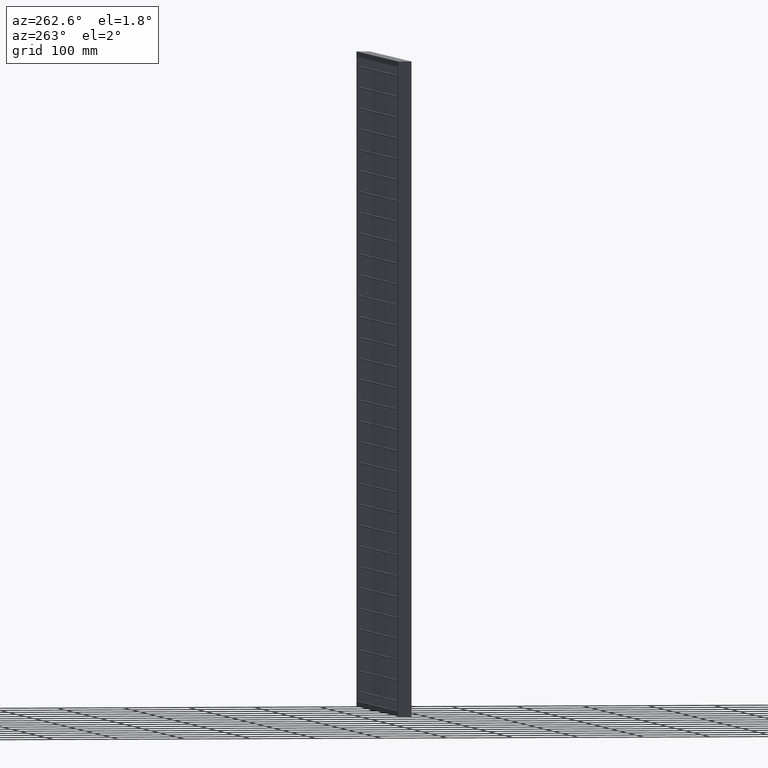
[diagram: clean part render]
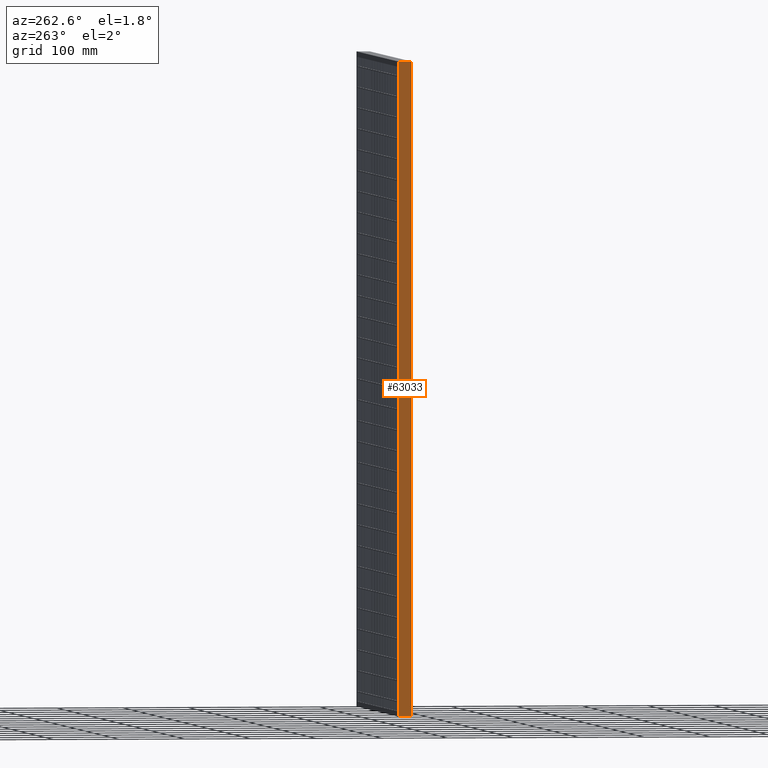
[diagram: same view with one face highlighted and labeled with its STEP entity id]
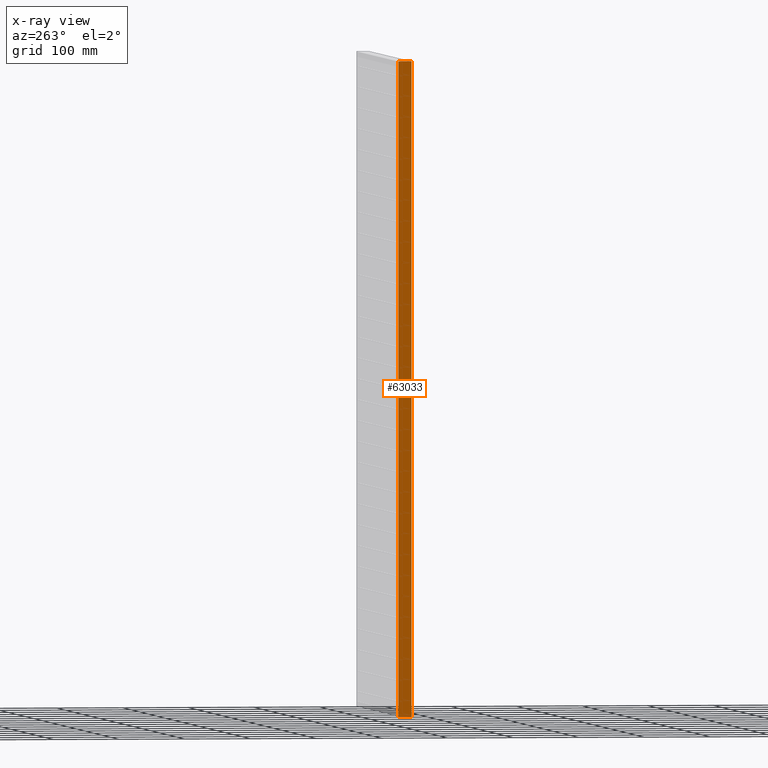
[diagram: x-ray of the same camera — body ghosted, the highlighted face saturated]
A machine part, auxiliary view. The second image highlights one B-rep face of the part: STEP entity #63033.
The next image is the same camera in x-ray: the body ghosted, the highlighted face saturated — about 0% of this face is hidden behind the body in this view.
In plain terms, the highlighted planar face has unit normal (-1, -0, 0).
Its self-contained STEP definition (entity closure, byte-faithful):
#1864 = LINE ( 'NONE', #12624, #5274 ) ;
#2386 = LINE ( 'NONE', #12839, #65158 ) ;
#3214 = VERTEX_POINT ( 'NONE', #67420 ) ;
#5045 = VERTEX_POINT ( 'NONE', #38689 ) ;
#5274 = VECTOR ( 'NONE', #55854, 1000.000000000000000 ) ;
#6927 = ORIENTED_EDGE ( 'NONE', *, *, #30135, .T. ) ;
#9090 = EDGE_CURVE ( 'NONE', #61367, #3214, #1864, .T. ) ;
#11494 = CARTESIAN_POINT ( 'NONE',  ( -3.061616997868382300E-015, 10.00000000000000000, -1033.081318457076100 ) ) ;
#12624 = CARTESIAN_POINT ( 'NONE',  ( 3.061616997868383000E-015, -10.00000000000000000, -1033.081318457076100 ) ) ;
#12839 = CARTESIAN_POINT ( 'NONE',  ( -3.061616997868386200E-015, 10.00000000000001400, -990.0000000000000000 ) ) ;
#13568 = DIRECTION ( 'NONE',  ( 3.061616997868382600E-016, -1.000000000000000000, 3.061616997868382600E-016 ) ) ;
#16032 = LINE ( 'NONE', #61260, #68438 ) ;
#17401 = CARTESIAN_POINT ( 'NONE',  ( 1.110223024625154600E-013, 10.00000000000000000, 1.224646799147366000E-014 ) ) ;
#18240 = DIRECTION ( 'NONE',  ( -1.000000000000000000, -3.061616997868382600E-016, 0.0000000000000000000 ) ) ;
#19534 = FACE_OUTER_BOUND ( 'NONE', #61050, .T. ) ;
#22488 = EDGE_CURVE ( 'NONE', #5045, #61367, #2386, .T. ) ;
#23165 = CARTESIAN_POINT ( 'NONE',  ( 1.020538999289461500E-015, -3.333333333333333900, 0.0000000000000000000 ) ) ;
#25476 = CARTESIAN_POINT ( 'NONE',  ( 3.061616997868383000E-015, -10.00000000000000000, -990.0000000000000000 ) ) ;
#27779 = AXIS2_PLACEMENT_3D ( 'NONE', #11494, #18240, #30221 ) ;
#27974 = CARTESIAN_POINT ( 'NONE',  ( 5.704195973019201600E-014, -10.00000000000000000, -1.665334536937734800E-013 ) ) ;
#30135 = EDGE_CURVE ( 'NONE', #3214, #38520, #36959, .T. ) ;
#30221 = DIRECTION ( 'NONE',  ( 3.061616997868382600E-016, -1.000000000000000000, 0.0000000000000000000 ) ) ;
#30845 = ORIENTED_EDGE ( 'NONE', *, *, #61652, .F. ) ;
#36959 = B_SPLINE_CURVE_WITH_KNOTS ( 'NONE', 3,
 ( #27974, #23165, #39506, #61625 ),
 .UNSPECIFIED., .F., .F.,
 ( 4, 4 ),
 ( 0.0000000000000000000, 1.000000000000000000 ),
 .UNSPECIFIED. ) ;
#38520 = VERTEX_POINT ( 'NONE', #17401 ) ;
#38689 = CARTESIAN_POINT ( 'NONE',  ( -3.061616997868381900E-015, 10.00000000000000000, -990.0000000000000000 ) ) ;
#39506 = CARTESIAN_POINT ( 'NONE',  ( -1.020538999289460800E-015, 3.333333333333333900, 0.0000000000000000000 ) ) ;
#50184 = PLANE ( 'NONE',  #27779 ) ;
#55149 = ORIENTED_EDGE ( 'NONE', *, *, #22488, .T. ) ;
#55854 = DIRECTION ( 'NONE',  ( -0.0000000000000000000, -0.0000000000000000000, 1.000000000000000000 ) ) ;
#61050 = EDGE_LOOP ( 'NONE', ( #71353, #6927, #30845, #55149 ) ) ;
#61260 = CARTESIAN_POINT ( 'NONE',  ( -3.061616997868382300E-015, 10.00000000000000000, -1033.081318457076100 ) ) ;
#61367 = VERTEX_POINT ( 'NONE', #25476 ) ;
#61625 = CARTESIAN_POINT ( 'NONE',  ( 1.110223024625154600E-013, 10.00000000000000000, 1.224646799147366000E-014 ) ) ;
#61652 = EDGE_CURVE ( 'NONE', #5045, #38520, #16032, .T. ) ;
#63033 = ADVANCED_FACE ( 'NONE', ( #19534 ), #50184, .T. ) ;
#65158 = VECTOR ( 'NONE', #13568, 1000.000000000000000 ) ;
#66106 = DIRECTION ( 'NONE',  ( -0.0000000000000000000, -0.0000000000000000000, 1.000000000000000000 ) ) ;
#67420 = CARTESIAN_POINT ( 'NONE',  ( 5.704195973019201600E-014, -10.00000000000000000, -1.665334536937734800E-013 ) ) ;
#68438 = VECTOR ( 'NONE', #66106, 1000.000000000000000 ) ;
#71353 = ORIENTED_EDGE ( 'NONE', *, *, #9090, .T. ) ;